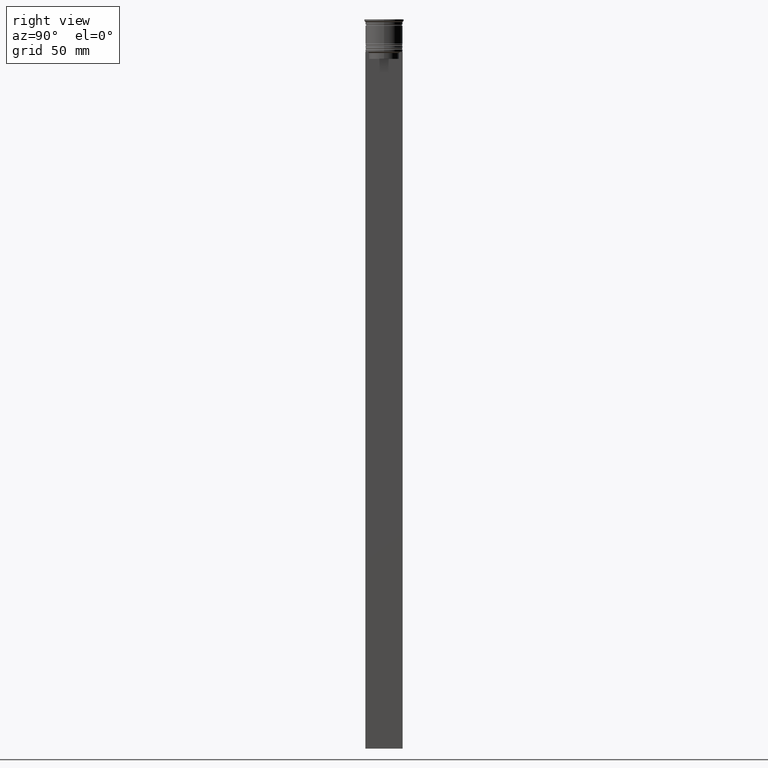
[diagram: clean part render]
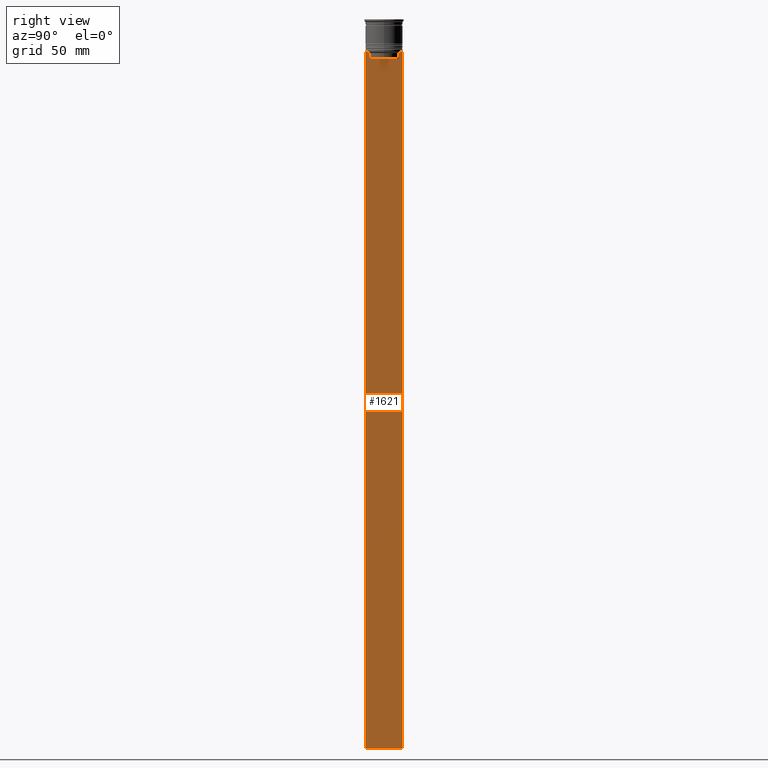
[diagram: same view with one face highlighted and labeled with its STEP entity id]
A machine part, right view. The second image highlights one B-rep face of the part: STEP entity #1621.
In plain terms, the highlighted planar face has unit normal (-1, 0, 0).
Its self-contained STEP definition (entity closure, byte-faithful):
#45 = LINE ( 'NONE', #1597, #414 ) ;
#67 = AXIS2_PLACEMENT_3D ( 'NONE', #488, #1092, #293 ) ;
#90 = CARTESIAN_POINT ( 'NONE',  ( 0.5000000000000001110, 7.884161337770806632, -14.00000000000000178 ) ) ;
#157 = VERTEX_POINT ( 'NONE', #244 ) ;
#178 = VECTOR ( 'NONE', #2433, 1000.000000000000000 ) ;
#194 = LINE ( 'NONE', #961, #2442 ) ;
#244 = CARTESIAN_POINT ( 'NONE',  ( 0.5000000000000001110, -7.884161337770806632, -14.00000000000000178 ) ) ;
#249 = ORIENTED_EDGE ( 'NONE', *, *, #1074, .T. ) ;
#278 = CARTESIAN_POINT ( 'NONE',  ( 0.5000000000000001110, -6.380438856379708312, -14.50000000000000000 ) ) ;
#293 = DIRECTION ( 'NONE',  ( 0.000000000000000000, 0.000000000000000000, 1.000000000000000000 ) ) ;
#303 = VECTOR ( 'NONE', #1395, 1000.000000000000000 ) ;
#326 = LINE ( 'NONE', #1902, #178 ) ;
#339 = CARTESIAN_POINT ( 'NONE',  ( 0.5000000000000001110, -6.380438856379708312, -14.50000000000000000 ) ) ;
#340 = LINE ( 'NONE', #1118, #343 ) ;
#343 = VECTOR ( 'NONE', #1102, 1000.000000000000000 ) ;
#372 = EDGE_CURVE ( 'NONE', #531, #2387, #906, .T. ) ;
#406 = VERTEX_POINT ( 'NONE', #339 ) ;
#414 = VECTOR ( 'NONE', #1377, 1000.000000000000000 ) ;
#441 = EDGE_CURVE ( 'NONE', #2172, #406, #326, .T. ) ;
#448 = FACE_OUTER_BOUND ( 'NONE', #979, .T. ) ;
#461 = VECTOR ( 'NONE', #1651, 1000.000000000000000 ) ;
#488 = CARTESIAN_POINT ( 'NONE',  ( 0.5000000000000001110, -8.000000000000003553, 2.031219541881394530 ) ) ;
#491 = ORIENTED_EDGE ( 'NONE', *, *, #2426, .T. ) ;
#522 = VERTEX_POINT ( 'NONE', #1912 ) ;
#531 = VERTEX_POINT ( 'NONE', #1533 ) ;
#672 = ORIENTED_EDGE ( 'NONE', *, *, #680, .T. ) ;
#676 = CARTESIAN_POINT ( 'NONE',  ( 0.5000000000000001110, 7.999999999999996447, -14.00000000000000178 ) ) ;
#680 = EDGE_CURVE ( 'NONE', #848, #531, #45, .T. ) ;
#784 = CARTESIAN_POINT ( 'NONE',  ( 0.5000000000000001110, -8.000000000000003553, -14.00000000000000178 ) ) ;
#796 = DIRECTION ( 'NONE',  ( 0.000000000000000000, -1.000000000000000000, 0.000000000000000000 ) ) ;
#802 = VERTEX_POINT ( 'NONE', #676 ) ;
#842 = LINE ( 'NONE', #2391, #1882 ) ;
#848 = VERTEX_POINT ( 'NONE', #90 ) ;
#906 = B_SPLINE_CURVE_WITH_KNOTS ( 'NONE', 3,
 ( #2399, #1662, #2216, #1261 ),
 .UNSPECIFIED., .F., .F.,
 ( 4, 4 ),
 ( 0.01172465562756038263, 0.01243276816391822651 ),
 .UNSPECIFIED. ) ;
#914 = ORIENTED_EDGE ( 'NONE', *, *, #2179, .T. ) ;
#915 = VERTEX_POINT ( 'NONE', #1874 ) ;
#956 = VECTOR ( 'NONE', #1319, 1000.000000000000000 ) ;
#961 = CARTESIAN_POINT ( 'NONE',  ( 0.5000000000000001110, -8.000000000000003553, -14.00000000000000178 ) ) ;
#979 = EDGE_LOOP ( 'NONE', ( #672, #2292, #1064, #1016, #1655, #491, #1608, #2258, #914, #249, #2460, #2228 ) ) ;
#1016 = ORIENTED_EDGE ( 'NONE', *, *, #1747, .T. ) ;
#1047 = CARTESIAN_POINT ( 'NONE',  ( 0.5000000000000001110, -6.714736947305993908, -14.16668390685738821 ) ) ;
#1064 = ORIENTED_EDGE ( 'NONE', *, *, #1946, .T. ) ;
#1074 = EDGE_CURVE ( 'NONE', #2294, #2104, #1585, .T. ) ;
#1092 = DIRECTION ( 'NONE',  ( -1.000000000000000000, 0.000000000000000000, 0.000000000000000000 ) ) ;
#1102 = DIRECTION ( 'NONE',  ( 0.000000000000000000, -1.000000000000000000, 0.000000000000000000 ) ) ;
#1118 = CARTESIAN_POINT ( 'NONE',  ( 0.5000000000000001110, 6.399999999999999467, -17.00000000000000000 ) ) ;
#1156 = CARTESIAN_POINT ( 'NONE',  ( 0.5000000000000001110, 7.999999999999996447, 2.031219541881394530 ) ) ;
#1163 = EDGE_CURVE ( 'NONE', #522, #157, #842, .T. ) ;
#1221 = DIRECTION ( 'NONE',  ( 0.000000000000000000, -1.000000000000000000, 0.000000000000000000 ) ) ;
#1261 = CARTESIAN_POINT ( 'NONE',  ( 0.5000000000000001110, 6.380438856379708312, -14.50000000000000000 ) ) ;
#1319 = DIRECTION ( 'NONE',  ( 0.000000000000000000, 0.000000000000000000, -1.000000000000000000 ) ) ;
#1377 = DIRECTION ( 'NONE',  ( 0.000000000000000000, -1.000000000000000000, 0.000000000000000000 ) ) ;
#1395 = DIRECTION ( 'NONE',  ( 0.000000000000000000, 1.000000000000000000, 0.000000000000000000 ) ) ;
#1409 = VECTOR ( 'NONE', #796, 1000.000000000000000 ) ;
#1454 = B_SPLINE_CURVE_WITH_KNOTS ( 'NONE', 3,
 ( #278, #1648, #1047, #2187 ),
 .UNSPECIFIED., .F., .F.,
 ( 4, 4 ),
 ( 0.02996184199614751464, 0.03067452609193705923 ),
 .UNSPECIFIED. ) ;
#1456 = CARTESIAN_POINT ( 'NONE',  ( 0.5000000000000001110, 6.380438856379708312, -14.50000000000000000 ) ) ;
#1495 = CARTESIAN_POINT ( 'NONE',  ( 0.5000000000000001110, 7.999999999999996447, -314.0000000000000000 ) ) ;
#1506 = LINE ( 'NONE', #2272, #956 ) ;
#1525 = VECTOR ( 'NONE', #1926, 1000.000000000000000 ) ;
#1531 = CARTESIAN_POINT ( 'NONE',  ( 0.5000000000000001110, -8.000000000000003553, -314.0000000000000000 ) ) ;
#1533 = CARTESIAN_POINT ( 'NONE',  ( 0.5000000000000001110, 6.881860213634098500, -14.00000000000000178 ) ) ;
#1563 = CARTESIAN_POINT ( 'NONE',  ( 0.5000000000000001110, -8.000000000000003553, -314.0000000000000000 ) ) ;
#1585 = LINE ( 'NONE', #1531, #303 ) ;
#1595 = LINE ( 'NONE', #2151, #1409 ) ;
#1597 = CARTESIAN_POINT ( 'NONE',  ( 0.5000000000000001110, -8.000000000000003553, -14.00000000000000178 ) ) ;
#1608 = ORIENTED_EDGE ( 'NONE', *, *, #1163, .T. ) ;
#1621 = ADVANCED_FACE ( 'NONE', ( #448 ), #2028, .F. ) ;
#1648 = CARTESIAN_POINT ( 'NONE',  ( 0.5000000000000001110, -6.547597841511247019, -14.33335192438652150 ) ) ;
#1651 = DIRECTION ( 'NONE',  ( 0.000000000000000000, 0.000000000000000000, -1.000000000000000000 ) ) ;
#1655 = ORIENTED_EDGE ( 'NONE', *, *, #441, .T. ) ;
#1662 = CARTESIAN_POINT ( 'NONE',  ( 0.5000000000000001110, 6.714736947114692711, -14.16668390704818847 ) ) ;
#1724 = CARTESIAN_POINT ( 'NONE',  ( 0.5000000000000001110, -6.380438856379708312, -17.00000000000000000 ) ) ;
#1740 = DIRECTION ( 'NONE',  ( 0.000000000000000000, -1.000000000000000000, 0.000000000000000000 ) ) ;
#1747 = EDGE_CURVE ( 'NONE', #915, #2172, #340, .T. ) ;
#1874 = CARTESIAN_POINT ( 'NONE',  ( 0.5000000000000001110, 6.380438856379708312, -17.00000000000000000 ) ) ;
#1882 = VECTOR ( 'NONE', #1221, 1000.000000000000000 ) ;
#1884 = VERTEX_POINT ( 'NONE', #784 ) ;
#1902 = CARTESIAN_POINT ( 'NONE',  ( 0.5000000000000001110, -6.380438856379708312, 0.000000000000000000 ) ) ;
#1912 = CARTESIAN_POINT ( 'NONE',  ( 0.5000000000000001110, -6.881860213634098500, -14.00000000000000178 ) ) ;
#1926 = DIRECTION ( 'NONE',  ( 0.000000000000000000, 0.000000000000000000, -1.000000000000000000 ) ) ;
#1946 = EDGE_CURVE ( 'NONE', #2387, #915, #2026, .T. ) ;
#2026 = LINE ( 'NONE', #2373, #461 ) ;
#2028 = PLANE ( 'NONE',  #67 ) ;
#2104 = VERTEX_POINT ( 'NONE', #1495 ) ;
#2151 = CARTESIAN_POINT ( 'NONE',  ( 0.5000000000000001110, -8.000000000000003553, -14.00000000000000178 ) ) ;
#2172 = VERTEX_POINT ( 'NONE', #1724 ) ;
#2178 = LINE ( 'NONE', #1156, #1525 ) ;
#2179 = EDGE_CURVE ( 'NONE', #1884, #2294, #1506, .T. ) ;
#2187 = CARTESIAN_POINT ( 'NONE',  ( 0.5000000000000001110, -6.881860213634098500, -14.00000000000000178 ) ) ;
#2216 = CARTESIAN_POINT ( 'NONE',  ( 0.5000000000000001110, 6.547597841304911626, -14.33335192459222718 ) ) ;
#2228 = ORIENTED_EDGE ( 'NONE', *, *, #2340, .T. ) ;
#2233 = EDGE_CURVE ( 'NONE', #157, #1884, #1595, .T. ) ;
#2258 = ORIENTED_EDGE ( 'NONE', *, *, #2233, .T. ) ;
#2272 = CARTESIAN_POINT ( 'NONE',  ( 0.5000000000000001110, -8.000000000000003553, 2.031219541881394530 ) ) ;
#2292 = ORIENTED_EDGE ( 'NONE', *, *, #372, .T. ) ;
#2294 = VERTEX_POINT ( 'NONE', #1563 ) ;
#2335 = EDGE_CURVE ( 'NONE', #802, #2104, #2178, .T. ) ;
#2340 = EDGE_CURVE ( 'NONE', #802, #848, #194, .T. ) ;
#2373 = CARTESIAN_POINT ( 'NONE',  ( 0.5000000000000001110, 6.380438856379708312, 0.000000000000000000 ) ) ;
#2387 = VERTEX_POINT ( 'NONE', #1456 ) ;
#2391 = CARTESIAN_POINT ( 'NONE',  ( 0.5000000000000001110, -8.000000000000003553, -14.00000000000000178 ) ) ;
#2399 = CARTESIAN_POINT ( 'NONE',  ( 0.5000000000000001110, 6.881860213634098500, -14.00000000000000178 ) ) ;
#2426 = EDGE_CURVE ( 'NONE', #406, #522, #1454, .T. ) ;
#2433 = DIRECTION ( 'NONE',  ( -0.000000000000000000, -0.000000000000000000, 1.000000000000000000 ) ) ;
#2442 = VECTOR ( 'NONE', #1740, 1000.000000000000000 ) ;
#2460 = ORIENTED_EDGE ( 'NONE', *, *, #2335, .F. ) ;